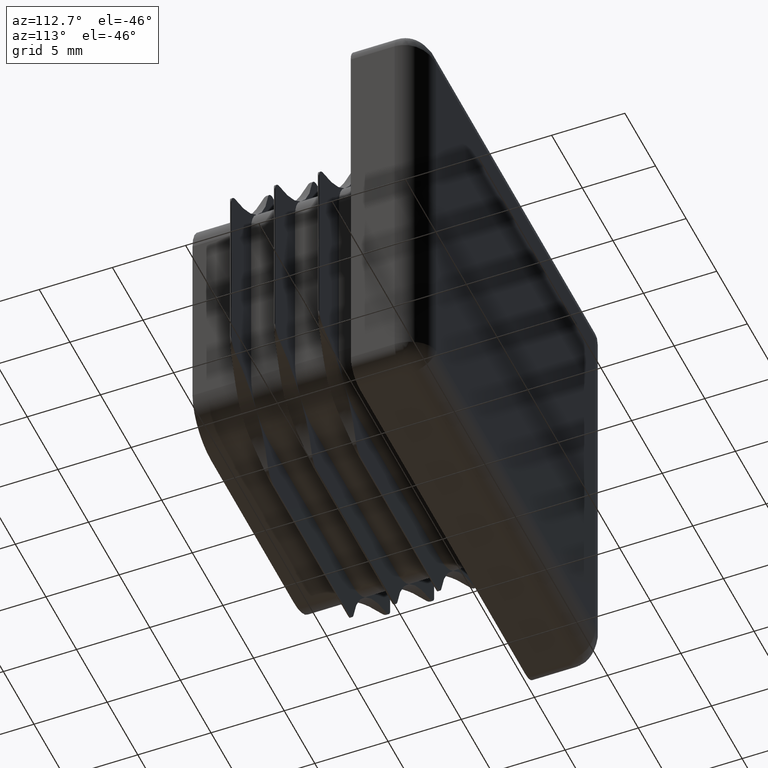
[diagram: clean part render]
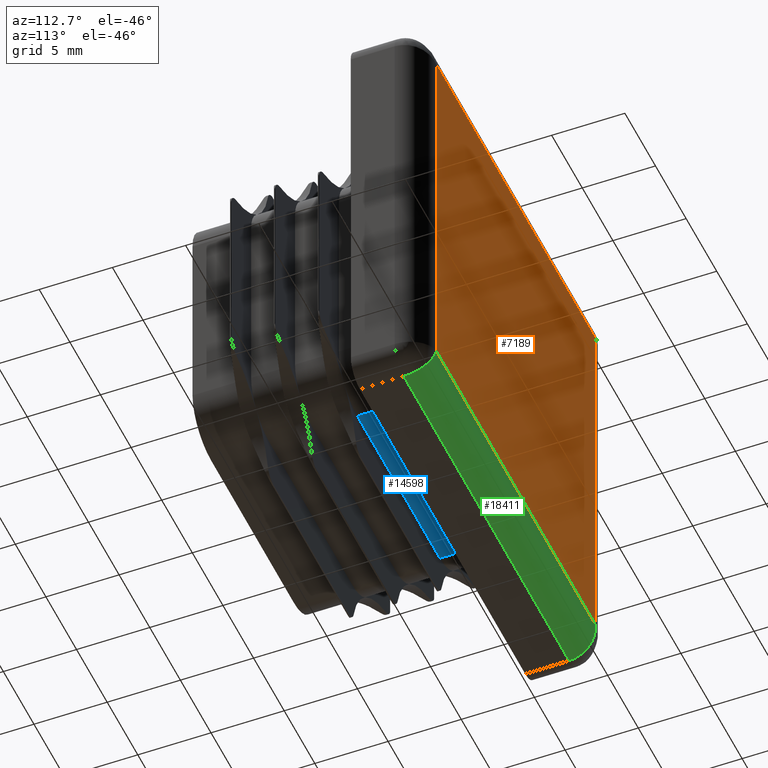
[diagram: same view with three faces highlighted in distinct colors, each labeled with its STEP entity id]
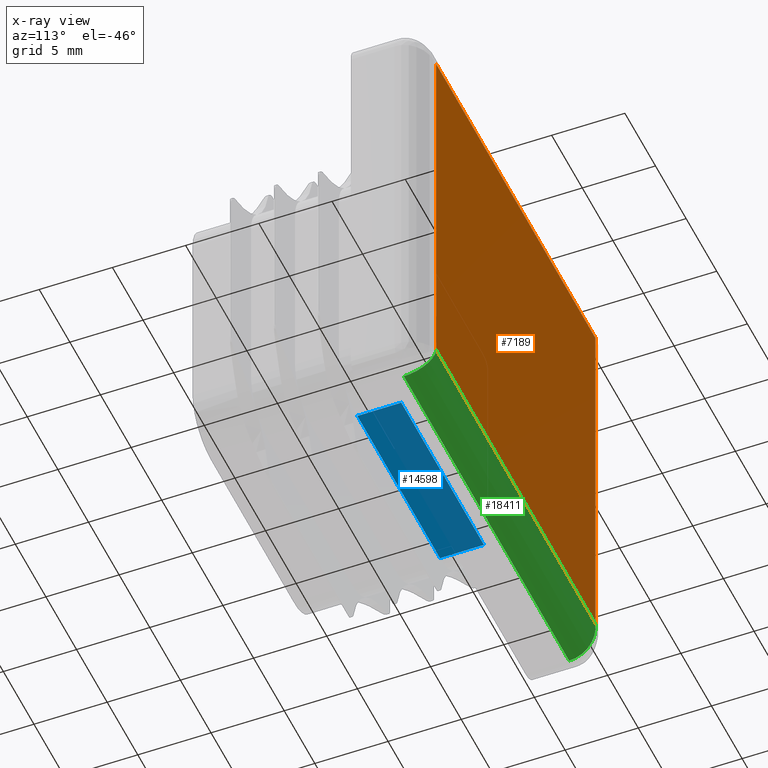
[diagram: x-ray of the same camera — body ghosted, the three highlighted faces saturated]
A machine part, auxiliary view with three faces highlighted in distinct colors.
The next image is the same camera in x-ray (body ghosted, the three faces saturated) — at least one of them is partly hidden behind the body in this view.
Their STEP definitions:

[orange] entity #7189 — the highlighted planar face has unit normal (0, 1, 0).
#241 = LINE ( 'NONE', #17321, #7682 ) ;
#809 = DIRECTION ( 'NONE',  ( 4.625929269271486900E-16, -0.000000000000000000, 1.000000000000000000 ) ) ;
#2319 = CARTESIAN_POINT ( 'NONE',  ( -12.99999999999999289, 5.000000000000000000, 13.00000000000001243 ) ) ;
#2993 = DIRECTION ( 'NONE',  ( 0.000000000000000000, -0.000000000000000000, 1.000000000000000000 ) ) ;
#3548 = CARTESIAN_POINT ( 'NONE',  ( -13.00000000000000533, 5.000000000000000000, -12.99999999999997868 ) ) ;
#3601 = VERTEX_POINT ( 'NONE', #4831 ) ;
#4019 = CARTESIAN_POINT ( 'NONE',  ( -12.99999999999999289, 5.000000000000000000, 13.50000000000001066 ) ) ;
#4831 = CARTESIAN_POINT ( 'NONE',  ( 13.00000000000000711, 5.000000000000000000, 13.00000000000001243 ) ) ;
#5221 = EDGE_CURVE ( 'NONE', #14139, #3601, #241, .T. ) ;
#5532 = DIRECTION ( 'NONE',  ( -1.000000000000000000, 0.000000000000000000, 4.625929269271484928E-16 ) ) ;
#5779 = VECTOR ( 'NONE', #5532, 1000.000000000000000 ) ;
#6107 = LINE ( 'NONE', #4019, #13008 ) ;
#7189 = ADVANCED_FACE ( 'NONE', ( #13804 ), #14304, .T. ) ;
#7676 = AXIS2_PLACEMENT_3D ( 'NONE', #14101, #14037, #2993 ) ;
#7682 = VECTOR ( 'NONE', #15790, 1000.000000000000000 ) ;
#7769 = LINE ( 'NONE', #8644, #5779 ) ;
#8248 = ORIENTED_EDGE ( 'NONE', *, *, #11750, .T. ) ;
#8534 = CARTESIAN_POINT ( 'NONE',  ( 13.00000000000000000, 5.000000000000000000, -12.99999999999999112 ) ) ;
#8644 = CARTESIAN_POINT ( 'NONE',  ( -13.50000000000000533, 5.000000000000000000, -12.99999999999997868 ) ) ;
#9287 = ORIENTED_EDGE ( 'NONE', *, *, #16490, .T. ) ;
#11750 = EDGE_CURVE ( 'NONE', #15846, #16162, #7769, .T. ) ;
#12800 = LINE ( 'NONE', #15799, #20250 ) ;
#13008 = VECTOR ( 'NONE', #809, 1000.000000000000000 ) ;
#13804 = FACE_OUTER_BOUND ( 'NONE', #18762, .T. ) ;
#13976 = ORIENTED_EDGE ( 'NONE', *, *, #18352, .T. ) ;
#14037 = DIRECTION ( 'NONE',  ( 0.000000000000000000, 1.000000000000000000, 0.000000000000000000 ) ) ;
#14101 = CARTESIAN_POINT ( 'NONE',  ( 0.000000000000000000, 5.000000000000000000, 0.000000000000000000 ) ) ;
#14139 = VERTEX_POINT ( 'NONE', #2319 ) ;
#14304 = PLANE ( 'NONE',  #7676 ) ;
#15604 = DIRECTION ( 'NONE',  ( -2.312964634635742464E-16, 0.000000000000000000, -1.000000000000000000 ) ) ;
#15790 = DIRECTION ( 'NONE',  ( 1.000000000000000000, -0.000000000000000000, 0.000000000000000000 ) ) ;
#15799 = CARTESIAN_POINT ( 'NONE',  ( 13.00000000000000000, 5.000000000000000000, -13.49999999999999289 ) ) ;
#15846 = VERTEX_POINT ( 'NONE', #8534 ) ;
#16162 = VERTEX_POINT ( 'NONE', #3548 ) ;
#16490 = EDGE_CURVE ( 'NONE', #3601, #15846, #12800, .T. ) ;
#17001 = ORIENTED_EDGE ( 'NONE', *, *, #5221, .T. ) ;
#17321 = CARTESIAN_POINT ( 'NONE',  ( 13.50000000000000533, 5.000000000000000000, 13.00000000000001243 ) ) ;
#18352 = EDGE_CURVE ( 'NONE', #16162, #14139, #6107, .T. ) ;
#18762 = EDGE_LOOP ( 'NONE', ( #13976, #17001, #9287, #8248 ) ) ;
#20250 = VECTOR ( 'NONE', #15604, 1000.000000000000000 ) ;

[blue] entity #14598 — the highlighted planar face has unit normal (-0, 0, 1).
#191 = ORIENTED_EDGE ( 'NONE', *, *, #15271, .T. ) ;
#229 = DIRECTION ( 'NONE',  ( 1.000000000000000000, 0.000000000000000000, 0.000000000000000000 ) ) ;
#464 = LINE ( 'NONE', #18107, #20524 ) ;
#663 = EDGE_LOOP ( 'NONE', ( #191, #13550, #7333, #3210 ) ) ;
#753 = CARTESIAN_POINT ( 'NONE',  ( -6.749999999999984901, -3.000000000000004441, -9.749999999999994671 ) ) ;
#977 = CARTESIAN_POINT ( 'NONE',  ( -6.749999999999984901, -13.00000000000000000, -9.749999999999994671 ) ) ;
#1462 = FACE_OUTER_BOUND ( 'NONE', #663, .T. ) ;
#2429 = AXIS2_PLACEMENT_3D ( 'NONE', #16512, #17854, #10252 ) ;
#2677 = DIRECTION ( 'NONE',  ( -0.000000000000000000, 1.000000000000000000, -0.000000000000000000 ) ) ;
#3210 = ORIENTED_EDGE ( 'NONE', *, *, #11079, .F. ) ;
#4101 = CARTESIAN_POINT ( 'NONE',  ( -6.749999999999984901, 0.000000000000000000, -9.749999999999994671 ) ) ;
#4195 = DIRECTION ( 'NONE',  ( -0.000000000000000000, 1.000000000000000000, -0.000000000000000000 ) ) ;
#4637 = VERTEX_POINT ( 'NONE', #753 ) ;
#6289 = CARTESIAN_POINT ( 'NONE',  ( 6.749999999999999112, 0.000000000000000000, -9.749999999999994671 ) ) ;
#6462 = VERTEX_POINT ( 'NONE', #14690 ) ;
#6609 = VECTOR ( 'NONE', #4195, 1000.000000000000000 ) ;
#6613 = CARTESIAN_POINT ( 'NONE',  ( -6.749999999999984901, -0.000000000000000000, -9.749999999999994671 ) ) ;
#6925 = PLANE ( 'NONE',  #2429 ) ;
#7030 = VECTOR ( 'NONE', #2677, 1000.000000000000000 ) ;
#7333 = ORIENTED_EDGE ( 'NONE', *, *, #17505, .T. ) ;
#8097 = LINE ( 'NONE', #6613, #15997 ) ;
#8471 = EDGE_CURVE ( 'NONE', #4637, #14792, #16234, .T. ) ;
#10252 = DIRECTION ( 'NONE',  ( 1.000000000000000000, 0.000000000000000000, 0.000000000000000000 ) ) ;
#11079 = EDGE_CURVE ( 'NONE', #6462, #13493, #14203, .T. ) ;
#13493 = VERTEX_POINT ( 'NONE', #6289 ) ;
#13550 = ORIENTED_EDGE ( 'NONE', *, *, #8471, .T. ) ;
#14203 = LINE ( 'NONE', #18735, #7030 ) ;
#14598 = ADVANCED_FACE ( 'NONE', ( #1462 ), #6925, .F. ) ;
#14690 = CARTESIAN_POINT ( 'NONE',  ( 6.749999999999999112, -3.000000000000000888, -9.749999999999994671 ) ) ;
#14792 = VERTEX_POINT ( 'NONE', #4101 ) ;
#15271 = EDGE_CURVE ( 'NONE', #6462, #4637, #464, .T. ) ;
#15997 = VECTOR ( 'NONE', #229, 1000.000000000000000 ) ;
#16234 = LINE ( 'NONE', #977, #6609 ) ;
#16512 = CARTESIAN_POINT ( 'NONE',  ( -6.749999999999984901, -13.00000000000000000, -9.749999999999994671 ) ) ;
#17505 = EDGE_CURVE ( 'NONE', #14792, #13493, #8097, .T. ) ;
#17854 = DIRECTION ( 'NONE',  ( -0.000000000000000000, 0.000000000000000000, 1.000000000000000000 ) ) ;
#18107 = CARTESIAN_POINT ( 'NONE',  ( 6.749999999999999112, -3.000000000000000888, -9.749999999999996447 ) ) ;
#18735 = CARTESIAN_POINT ( 'NONE',  ( 6.749999999999999112, -13.00000000000000000, -9.749999999999994671 ) ) ;
#19631 = DIRECTION ( 'NONE',  ( -1.000000000000000000, 0.000000000000000000, 0.000000000000000000 ) ) ;
#20524 = VECTOR ( 'NONE', #19631, 1000.000000000000000 ) ;

[green] entity #18411 — the highlighted cylindrical surface (edge-blend (fillet) strip) has radius 2 mm, axis along (1, 0, -0).
#2248 = CARTESIAN_POINT ( 'NONE',  ( -13.50000000000000711, 3.000000000000000000, -14.99999999999997868 ) ) ;
#2707 = DIRECTION ( 'NONE',  ( 1.000000000000000000, -0.000000000000000000, -4.625929269271484928E-16 ) ) ;
#2853 = CARTESIAN_POINT ( 'NONE',  ( 13.49999999999999822, 3.000000000000000000, -14.99999999999999289 ) ) ;
#3548 = CARTESIAN_POINT ( 'NONE',  ( -13.00000000000000533, 5.000000000000000000, -12.99999999999997868 ) ) ;
#4847 = EDGE_CURVE ( 'NONE', #17599, #12942, #18599, .T. ) ;
#5376 = EDGE_CURVE ( 'NONE', #17599, #16162, #19964, .T. ) ;
#5532 = DIRECTION ( 'NONE',  ( -1.000000000000000000, 0.000000000000000000, 4.625929269271484928E-16 ) ) ;
#5779 = VECTOR ( 'NONE', #5532, 1000.000000000000000 ) ;
#6670 = CARTESIAN_POINT ( 'NONE',  ( -13.00000000000000533, 5.000000000000000000, -12.99999999999997868 ) ) ;
#7769 = LINE ( 'NONE', #8644, #5779 ) ;
#8299 = CARTESIAN_POINT ( 'NONE',  ( 13.49999999999999822, 3.000000000000000000, -14.99999999999999289 ) ) ;
#8534 = CARTESIAN_POINT ( 'NONE',  ( 13.00000000000000000, 5.000000000000000000, -12.99999999999999112 ) ) ;
#8644 = CARTESIAN_POINT ( 'NONE',  ( -13.50000000000000533, 5.000000000000000000, -12.99999999999997868 ) ) ;
#9152 = EDGE_LOOP ( 'NONE', ( #19250, #16121, #19876, #10501 ) ) ;
#9995 = CARTESIAN_POINT ( 'NONE',  ( -13.29289321881345920, 5.000000000000001776, -14.17157287525378706 ) ) ;
#10501 = ORIENTED_EDGE ( 'NONE', *, *, #4847, .F. ) ;
#10555 = FACE_OUTER_BOUND ( 'NONE', #9152, .T. ) ;
#10957 =( BOUNDED_CURVE ( )  B_SPLINE_CURVE ( 3, ( #8299, #13054, #18197, #15199 ),
 .UNSPECIFIED., .F., .F. ) 
 B_SPLINE_CURVE_WITH_KNOTS ( ( 4, 4 ),
 ( 0.000000000000000000, 1.570796326794896558 ),
 .UNSPECIFIED. ) 
 CURVE ( )  GEOMETRIC_REPRESENTATION_ITEM ( )  RATIONAL_B_SPLINE_CURVE ( ( 1.000000000000000000, 0.8047378541243649375, 0.8047378541243649375, 1.000000000000000000 ) ) 
 REPRESENTATION_ITEM ( '' )  );
#11750 = EDGE_CURVE ( 'NONE', #15846, #16162, #7769, .T. ) ;
#12218 = CARTESIAN_POINT ( 'NONE',  ( -6.013708050052923898E-15, 3.000000000000000000, -12.99999999999998579 ) ) ;
#12290 = DIRECTION ( 'NONE',  ( 1.000000000000000000, 0.000000000000000000, -4.625929269271484928E-16 ) ) ;
#12511 = CYLINDRICAL_SURFACE ( 'NONE', #16883, 2.000000000000000000 ) ;
#12942 = VERTEX_POINT ( 'NONE', #16943 ) ;
#13054 = CARTESIAN_POINT ( 'NONE',  ( 13.50000000000000178, 4.171572875253809265, -14.99999999999999289 ) ) ;
#14355 = VECTOR ( 'NONE', #2707, 1000.000000000000000 ) ;
#14401 = CARTESIAN_POINT ( 'NONE',  ( -13.50000000000000711, 4.171572875253810153, -14.99999999999998046 ) ) ;
#14470 = CARTESIAN_POINT ( 'NONE',  ( -13.50000000000000711, 3.000000000000000000, -14.99999999999997868 ) ) ;
#15199 = CARTESIAN_POINT ( 'NONE',  ( 13.00000000000000000, 5.000000000000000000, -12.99999999999999112 ) ) ;
#15398 = DIRECTION ( 'NONE',  ( -4.625929269271484928E-16, 0.000000000000000000, -1.000000000000000000 ) ) ;
#15846 = VERTEX_POINT ( 'NONE', #8534 ) ;
#16121 = ORIENTED_EDGE ( 'NONE', *, *, #11750, .F. ) ;
#16162 = VERTEX_POINT ( 'NONE', #3548 ) ;
#16883 = AXIS2_PLACEMENT_3D ( 'NONE', #12218, #12290, #15398 ) ;
#16943 = CARTESIAN_POINT ( 'NONE',  ( 13.49999999999999822, 3.000000000000000000, -14.99999999999999289 ) ) ;
#17599 = VERTEX_POINT ( 'NONE', #2248 ) ;
#18197 = CARTESIAN_POINT ( 'NONE',  ( 13.29289321881345387, 4.999999999999999112, -14.17157287525379772 ) ) ;
#18299 = EDGE_CURVE ( 'NONE', #12942, #15846, #10957, .T. ) ;
#18411 = ADVANCED_FACE ( 'NONE', ( #10555 ), #12511, .T. ) ;
#18599 = LINE ( 'NONE', #2853, #14355 ) ;
#19250 = ORIENTED_EDGE ( 'NONE', *, *, #5376, .T. ) ;
#19876 = ORIENTED_EDGE ( 'NONE', *, *, #18299, .F. ) ;
#19964 =( BOUNDED_CURVE ( )  B_SPLINE_CURVE ( 3, ( #14470, #14401, #9995, #6670 ),
 .UNSPECIFIED., .F., .F. ) 
 B_SPLINE_CURVE_WITH_KNOTS ( ( 4, 4 ),
 ( 0.000000000000000000, 1.570796326794897446 ),
 .UNSPECIFIED. ) 
 CURVE ( )  GEOMETRIC_REPRESENTATION_ITEM ( )  RATIONAL_B_SPLINE_CURVE ( ( 1.000000000000000000, 0.8047378541243648264, 0.8047378541243648264, 1.000000000000000000 ) ) 
 REPRESENTATION_ITEM ( '' )  );